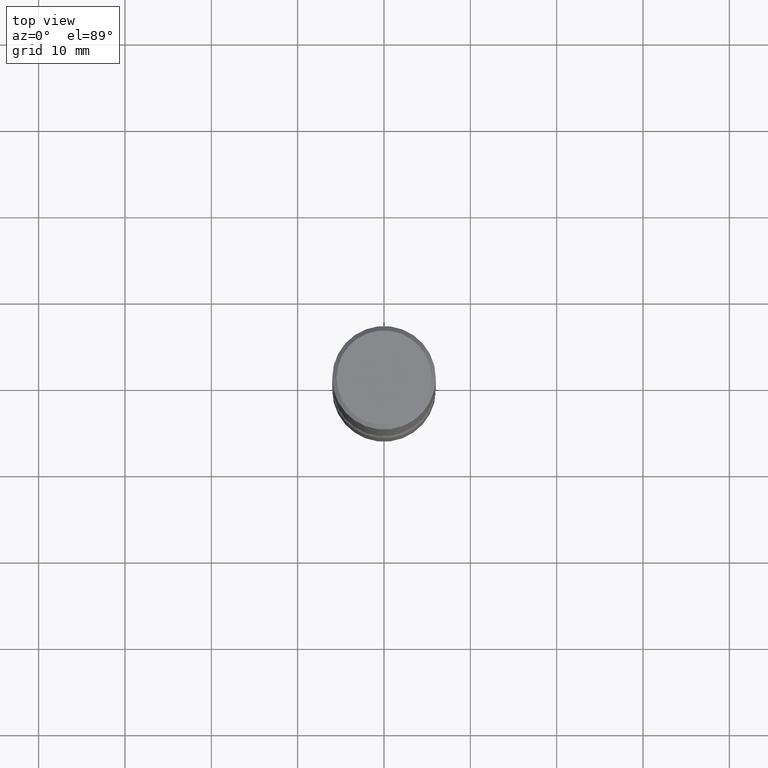
[diagram: clean part render]
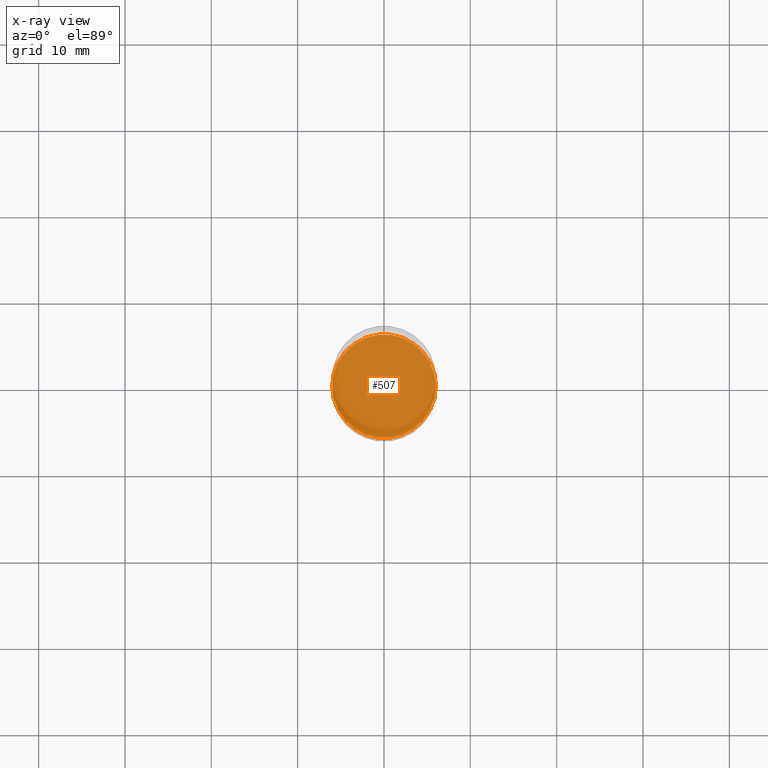
[diagram: x-ray — body ghosted, one internal face saturated and labeled with its STEP entity id]
A machine part, top view, then the same camera in x-ray: the body is ghosted and one INTERNAL B-rep face — a face not visible from any outside direction — is saturated and labeled: STEP entity #507.
In plain terms, the highlighted planar face has unit normal (0, -0, -1).
Its self-contained STEP definition (entity closure, byte-faithful):
#32 = ORIENTED_EDGE ( 'NONE', *, *, #225, .T. ) ;
#38 = VERTEX_POINT ( 'NONE', #211 ) ;
#60 = CIRCLE ( 'NONE', #503, 0.2362000000000004374 ) ;
#62 = DIRECTION ( 'NONE',  ( -2.445468806185136597E-29, 3.491481338843145583E-15, 1.000000000000000000 ) ) ;
#130 = DIRECTION ( 'NONE',  ( -2.445468806185136597E-29, 3.491481338843145583E-15, 1.000000000000000000 ) ) ;
#131 = CARTESIAN_POINT ( 'NONE',  ( 1.863038902682376506E-29, -1.302620709348179108E-14, -2.244100000000001760 ) ) ;
#196 = EDGE_CURVE ( 'NONE', #551, #38, #60, .T. ) ;
#211 = CARTESIAN_POINT ( 'NONE',  ( -0.2362000000000004374, -7.806481689168991326E-15, -2.244100000000001760 ) ) ;
#225 = EDGE_CURVE ( 'NONE', #38, #551, #283, .T. ) ;
#258 = DIRECTION ( 'NONE',  ( 2.438088387897960049E-29, -3.491481338843145188E-15, -1.000000000000000000 ) ) ;
#283 = CIRCLE ( 'NONE', #493, 0.2362000000000004374 ) ;
#286 = EDGE_LOOP ( 'NONE', ( #462, #32 ) ) ;
#318 = CARTESIAN_POINT ( 'NONE',  ( 0.2362000000000004374, -9.484609056967408331E-15, -2.244100000000001760 ) ) ;
#354 = DIRECTION ( 'NONE',  ( 1.000000000000000000, -6.982962677686264344E-15, 0.000000000000000000 ) ) ;
#373 = DIRECTION ( 'NONE',  ( 1.000000000000000000, -6.982962677686264344E-15, 0.000000000000000000 ) ) ;
#393 = PLANE ( 'NONE',  #530 ) ;
#397 = DIRECTION ( 'NONE',  ( -1.000000000000000000, 6.982962677686265922E-15, -4.876176775795935793E-29 ) ) ;
#405 = CARTESIAN_POINT ( 'NONE',  ( 5.487876547960070357E-29, -7.835233272497908651E-15, -2.244100000000001760 ) ) ;
#429 = FACE_OUTER_BOUND ( 'NONE', #286, .T. ) ;
#462 = ORIENTED_EDGE ( 'NONE', *, *, #196, .T. ) ;
#493 = AXIS2_PLACEMENT_3D ( 'NONE', #541, #62, #373 ) ;
#503 = AXIS2_PLACEMENT_3D ( 'NONE', #405, #130, #354 ) ;
#507 = ADVANCED_FACE ( 'NONE', ( #429 ), #393, .F. ) ;
#530 = AXIS2_PLACEMENT_3D ( 'NONE', #131, #258, #397 ) ;
#541 = CARTESIAN_POINT ( 'NONE',  ( 5.487876547960070357E-29, -7.835233272497908651E-15, -2.244100000000001760 ) ) ;
#551 = VERTEX_POINT ( 'NONE', #318 ) ;